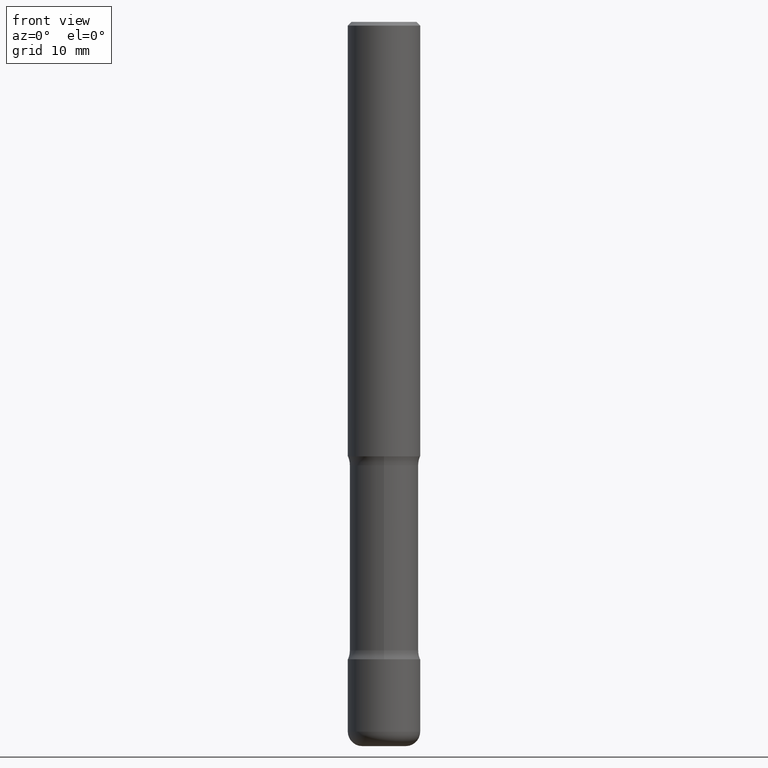
[diagram: clean part render]
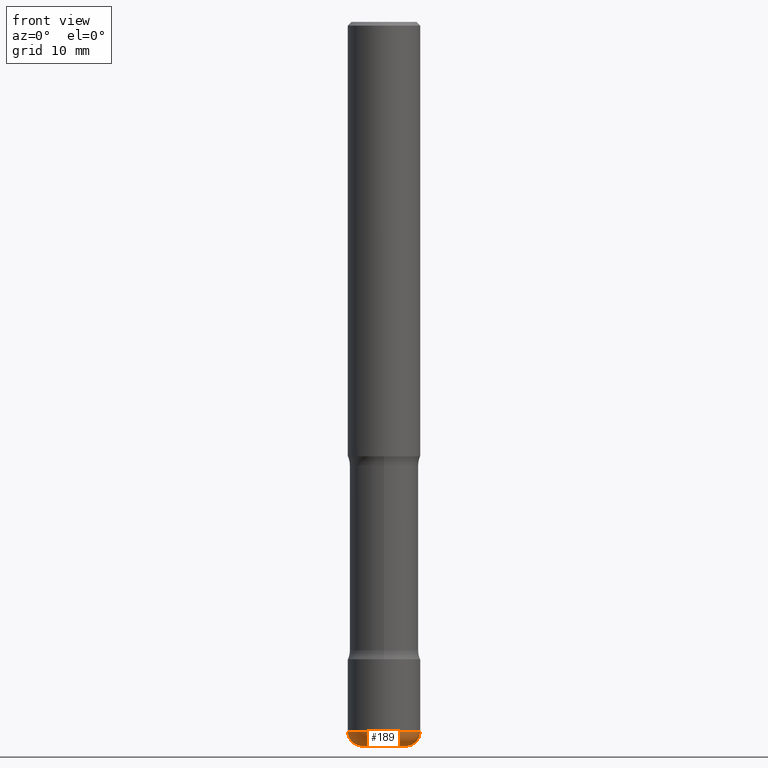
[diagram: same view with one face highlighted and labeled with its STEP entity id]
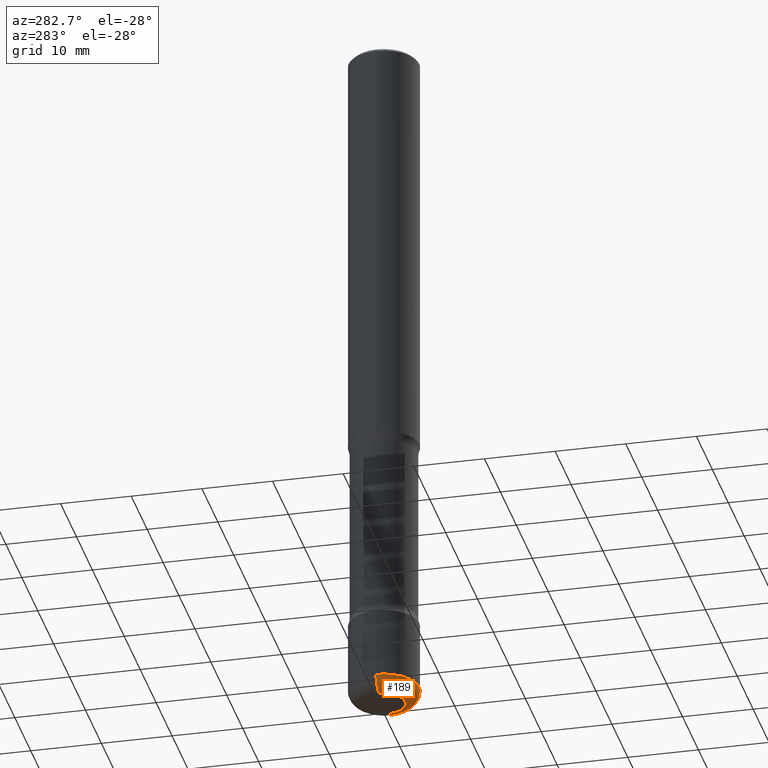
[diagram: same view with one face highlighted and labeled with its STEP entity id]
A machine part, front view. The second image highlights one B-rep face of the part: STEP entity #189.
A second angle (auxiliary view) of the same face is appended — the face is thin or edge-on in the first view.
In plain terms, the highlighted toroidal blend (fillet) surface has major radius 3.001 mm and minor (blend) radius 1.999 mm.
Its self-contained STEP definition (entity closure, byte-faithful):
#23 = AXIS2_PLACEMENT_3D ( 'NONE', #436, #350, #41 ) ;
#40 = FACE_OUTER_BOUND ( 'NONE', #490, .T. ) ;
#41 = DIRECTION ( 'NONE',  ( 1.000000000000000000, -6.982962677686269866E-15, 0.000000000000000000 ) ) ;
#78 = DIRECTION ( 'NONE',  ( 1.000000000000000000, -6.982962677686269866E-15, 0.000000000000000000 ) ) ;
#82 = DIRECTION ( 'NONE',  ( 7.105427357601001859E-15, 1.000000000000000000, -3.491481338843145583E-15 ) ) ;
#89 = VERTEX_POINT ( 'NONE', #341 ) ;
#98 = VERTEX_POINT ( 'NONE', #505 ) ;
#124 = CARTESIAN_POINT ( 'NONE',  ( 0.1181500000000002409, -1.429621949002714343E-14, -3.858300000000000285 ) ) ;
#127 = DIRECTION ( 'NONE',  ( 1.000000000000000000, -6.982962677686261977E-15, 4.883557194083110659E-29 ) ) ;
#146 = CIRCLE ( 'NONE', #190, 0.1968500000000002470 ) ;
#147 = CIRCLE ( 'NONE', #23, 0.1181500000000002409 ) ;
#149 = EDGE_CURVE ( 'NONE', #526, #98, #146, .T. ) ;
#152 = EDGE_CURVE ( 'NONE', #89, #526, #329, .T. ) ;
#154 = CIRCLE ( 'NONE', #475, 0.07870000000000021423 ) ;
#189 = ADVANCED_FACE ( 'NONE', ( #40 ), #411, .T. ) ;
#190 = AXIS2_PLACEMENT_3D ( 'NONE', #434, #212, #78 ) ;
#212 = DIRECTION ( 'NONE',  ( -2.445468806185136597E-29, 3.491481338843145583E-15, 1.000000000000000000 ) ) ;
#215 = EDGE_CURVE ( 'NONE', #243, #98, #154, .T. ) ;
#225 = ORIENTED_EDGE ( 'NONE', *, *, #557, .T. ) ;
#243 = VERTEX_POINT ( 'NONE', #251 ) ;
#248 = DIRECTION ( 'NONE',  ( -6.982962677686266711E-15, -1.000000000000000000, 3.491481338843145583E-15 ) ) ;
#251 = CARTESIAN_POINT ( 'NONE',  ( 0.1181500000000002409, -1.457099907139409992E-14, -3.937000000000000721 ) ) ;
#265 = AXIS2_PLACEMENT_3D ( 'NONE', #333, #82, #380 ) ;
#301 = DIRECTION ( 'NONE',  ( 1.000000000000000000, -6.982962677686276177E-15, 0.000000000000000000 ) ) ;
#329 = CIRCLE ( 'NONE', #265, 0.07870000000000021423 ) ;
#333 = CARTESIAN_POINT ( 'NONE',  ( -0.1181500000000002409, -1.263167620735794871E-14, -3.858300000000000285 ) ) ;
#341 = CARTESIAN_POINT ( 'NONE',  ( -0.1181500000000002409, -1.248946743151982599E-14, -3.937000000000000721 ) ) ;
#350 = DIRECTION ( 'NONE',  ( -2.445468806185136597E-29, 3.491481338843145583E-15, 1.000000000000000000 ) ) ;
#375 = ORIENTED_EDGE ( 'NONE', *, *, #152, .F. ) ;
#380 = DIRECTION ( 'NONE',  ( -1.000000000000000000, 7.105427357600997914E-15, 0.000000000000000000 ) ) ;
#388 = CARTESIAN_POINT ( 'NONE',  ( 9.435352294904112142E-29, -1.347118244965850850E-14, -3.858300000000000285 ) ) ;
#406 = ORIENTED_EDGE ( 'NONE', *, *, #149, .F. ) ;
#411 = TOROIDAL_SURFACE ( 'NONE', #445, 0.1181500000000002409, 0.07870000000000022811 ) ;
#414 = ORIENTED_EDGE ( 'NONE', *, *, #215, .T. ) ;
#434 = CARTESIAN_POINT ( 'NONE',  ( 9.435352294904112142E-29, -1.347118244965850850E-14, -3.858300000000000285 ) ) ;
#436 = CARTESIAN_POINT ( 'NONE',  ( 9.627810689950884790E-29, -1.374596203102546657E-14, -3.937000000000000721 ) ) ;
#443 = CARTESIAN_POINT ( 'NONE',  ( -0.1968500000000003580, -1.207247907431474834E-14, -3.858300000000000285 ) ) ;
#445 = AXIS2_PLACEMENT_3D ( 'NONE', #388, #555, #127 ) ;
#475 = AXIS2_PLACEMENT_3D ( 'NONE', #124, #248, #301 ) ;
#490 = EDGE_LOOP ( 'NONE', ( #375, #225, #414, #406 ) ) ;
#505 = CARTESIAN_POINT ( 'NONE',  ( 0.1968500000000003580, -1.484577865276105326E-14, -3.858300000000000285 ) ) ;
#526 = VERTEX_POINT ( 'NONE', #443 ) ;
#555 = DIRECTION ( 'NONE',  ( -2.445468806185136597E-29, 3.491481338843145583E-15, 1.000000000000000000 ) ) ;
#557 = EDGE_CURVE ( 'NONE', #89, #243, #147, .T. ) ;